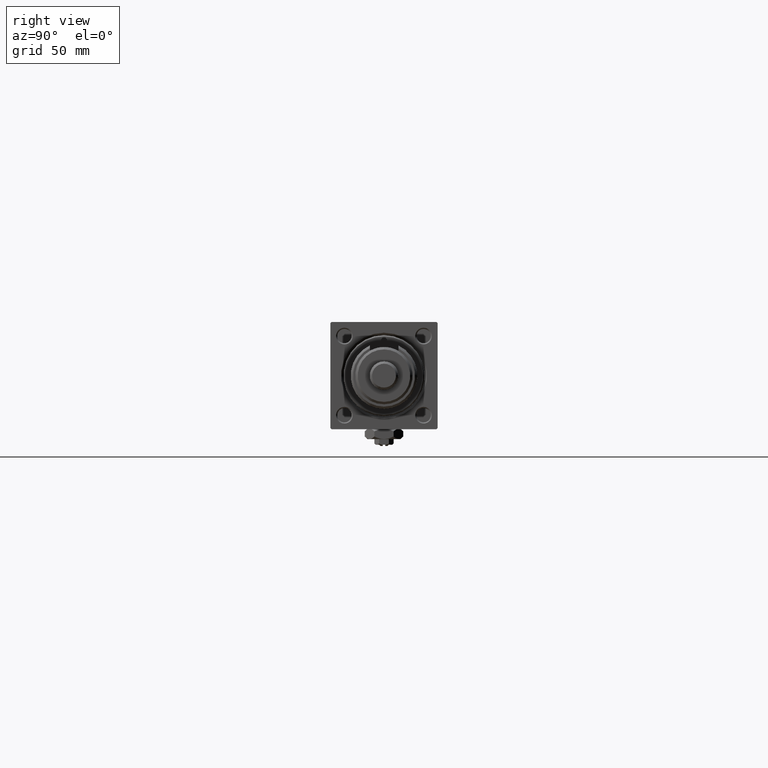
[diagram: clean part render]
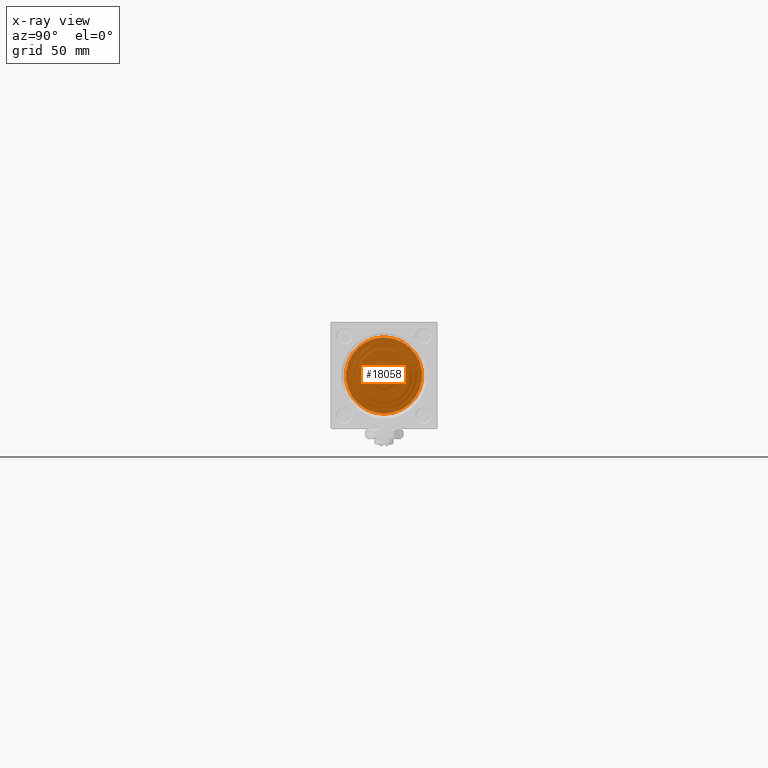
[diagram: x-ray — body ghosted, one internal face saturated and labeled with its STEP entity id]
A machine part, right view, then the same camera in x-ray: the body is ghosted and one INTERNAL B-rep face — a face not visible from any outside direction — is saturated and labeled: STEP entity #18058.
In plain terms, the highlighted planar face has unit normal (-1, 0, 0).
Its self-contained STEP definition (entity closure, byte-faithful):
#2471 = CARTESIAN_POINT ( 'NONE',  ( 25.00000000000000000, -6.426503353294456087E-16, -16.00000000000000000 ) ) ;
#2624 = AXIS2_PLACEMENT_3D ( 'NONE', #30448, #9226, #18694 ) ;
#3097 = CIRCLE ( 'NONE', #27159, 16.00000000000000000 ) ;
#4688 = VERTEX_POINT ( 'NONE', #12248 ) ;
#4757 = ORIENTED_EDGE ( 'NONE', *, *, #26383, .T. ) ;
#5289 = CIRCLE ( 'NONE', #2624, 3.500000000000000000 ) ;
#7643 = FACE_OUTER_BOUND ( 'NONE', #21044, .T. ) ;
#9226 = DIRECTION ( 'NONE',  ( -1.000000000000000000, 0.000000000000000000, -0.000000000000000000 ) ) ;
#10050 = ORIENTED_EDGE ( 'NONE', *, *, #50109, .T. ) ;
#10820 = EDGE_CURVE ( 'NONE', #19268, #36084, #3097, .T. ) ;
#12248 = CARTESIAN_POINT ( 'NONE',  ( 24.99999999999999289, 4.286263797015736595E-16, -3.500000000000000000 ) ) ;
#13862 = ORIENTED_EDGE ( 'NONE', *, *, #50830, .T. ) ;
#15037 = DIRECTION ( 'NONE',  ( 0.000000000000000000, 0.000000000000000000, -1.000000000000000000 ) ) ;
#18058 = ADVANCED_FACE ( 'NONE', ( #21258, #7643 ), #40561, .F. ) ;
#18694 = DIRECTION ( 'NONE',  ( 0.000000000000000000, 0.000000000000000000, 1.000000000000000000 ) ) ;
#19268 = VERTEX_POINT ( 'NONE', #2471 ) ;
#20215 = DIRECTION ( 'NONE',  ( -0.000000000000000000, 0.000000000000000000, 1.000000000000000000 ) ) ;
#20314 = AXIS2_PLACEMENT_3D ( 'NONE', #28311, #24133, #20215 ) ;
#21044 = EDGE_LOOP ( 'NONE', ( #4757, #31690 ) ) ;
#21258 = FACE_BOUND ( 'NONE', #28857, .T. ) ;
#24069 = AXIS2_PLACEMENT_3D ( 'NONE', #50181, #36789, #24533 ) ;
#24133 = DIRECTION ( 'NONE',  ( -1.000000000000000000, 0.000000000000000000, -0.000000000000000000 ) ) ;
#24533 = DIRECTION ( 'NONE',  ( 0.000000000000000000, 0.000000000000000000, 1.000000000000000000 ) ) ;
#25596 = CARTESIAN_POINT ( 'NONE',  ( 25.00000000000000000, -2.602085213965210642E-15, 0.000000000000000000 ) ) ;
#26383 = EDGE_CURVE ( 'NONE', #36084, #19268, #40130, .T. ) ;
#27159 = AXIS2_PLACEMENT_3D ( 'NONE', #44888, #35412, #15037 ) ;
#28311 = CARTESIAN_POINT ( 'NONE',  ( 25.00000000000000000, 0.000000000000000000, 0.000000000000000000 ) ) ;
#28857 = EDGE_LOOP ( 'NONE', ( #10050, #13862 ) ) ;
#30448 = CARTESIAN_POINT ( 'NONE',  ( 24.99999999999999289, 0.000000000000000000, 0.000000000000000000 ) ) ;
#31690 = ORIENTED_EDGE ( 'NONE', *, *, #10820, .T. ) ;
#33145 = DIRECTION ( 'NONE',  ( 1.000000000000000000, 0.000000000000000000, 0.000000000000000000 ) ) ;
#33779 = CARTESIAN_POINT ( 'NONE',  ( 24.99999999999999289, 0.000000000000000000, 3.500000000000000000 ) ) ;
#35412 = DIRECTION ( 'NONE',  ( 1.000000000000000000, 0.000000000000000000, 0.000000000000000000 ) ) ;
#36084 = VERTEX_POINT ( 'NONE', #54773 ) ;
#36789 = DIRECTION ( 'NONE',  ( -1.000000000000000000, 0.000000000000000000, -0.000000000000000000 ) ) ;
#39213 = CIRCLE ( 'NONE', #24069, 3.500000000000000000 ) ;
#40130 = CIRCLE ( 'NONE', #42810, 16.00000000000000000 ) ;
#40561 = PLANE ( 'NONE',  #20314 ) ;
#42810 = AXIS2_PLACEMENT_3D ( 'NONE', #25596, #33145, #47055 ) ;
#44888 = CARTESIAN_POINT ( 'NONE',  ( 25.00000000000000000, -2.602085213965210642E-15, 0.000000000000000000 ) ) ;
#47055 = DIRECTION ( 'NONE',  ( 0.000000000000000000, 0.000000000000000000, -1.000000000000000000 ) ) ;
#50109 = EDGE_CURVE ( 'NONE', #50979, #4688, #5289, .T. ) ;
#50181 = CARTESIAN_POINT ( 'NONE',  ( 24.99999999999999289, 0.000000000000000000, 0.000000000000000000 ) ) ;
#50830 = EDGE_CURVE ( 'NONE', #4688, #50979, #39213, .T. ) ;
#50979 = VERTEX_POINT ( 'NONE', #33779 ) ;
#54773 = CARTESIAN_POINT ( 'NONE',  ( 25.00000000000000000, -2.602085213965210642E-15, 16.00000000000000000 ) ) ;